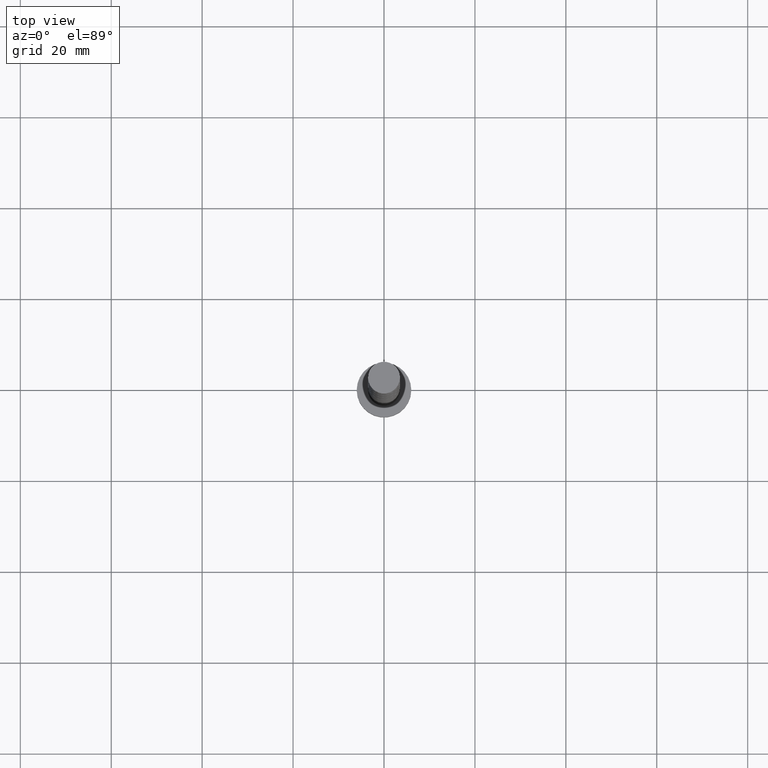
[diagram: clean part render]
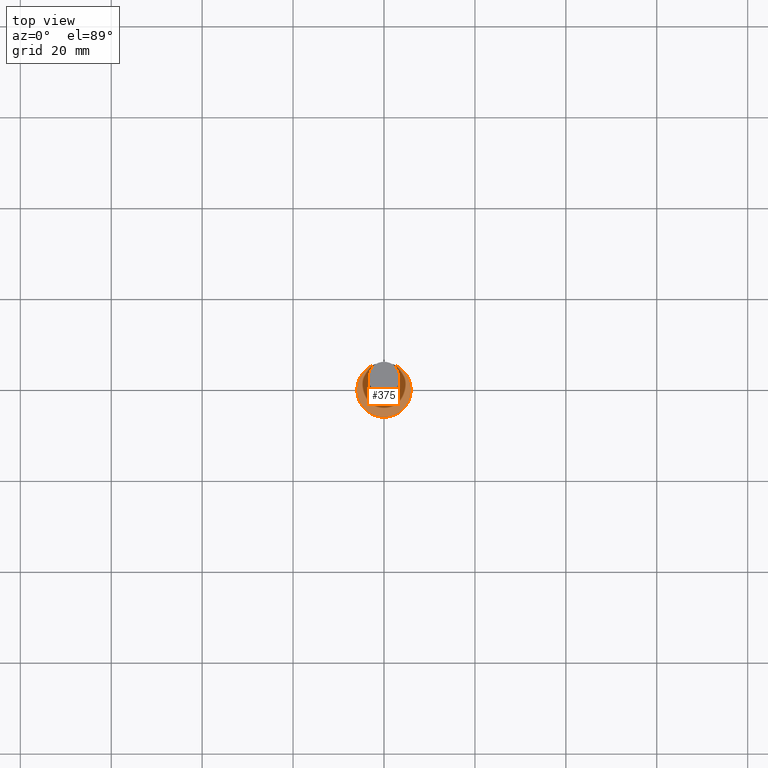
[diagram: same view with one face highlighted and labeled with its STEP entity id]
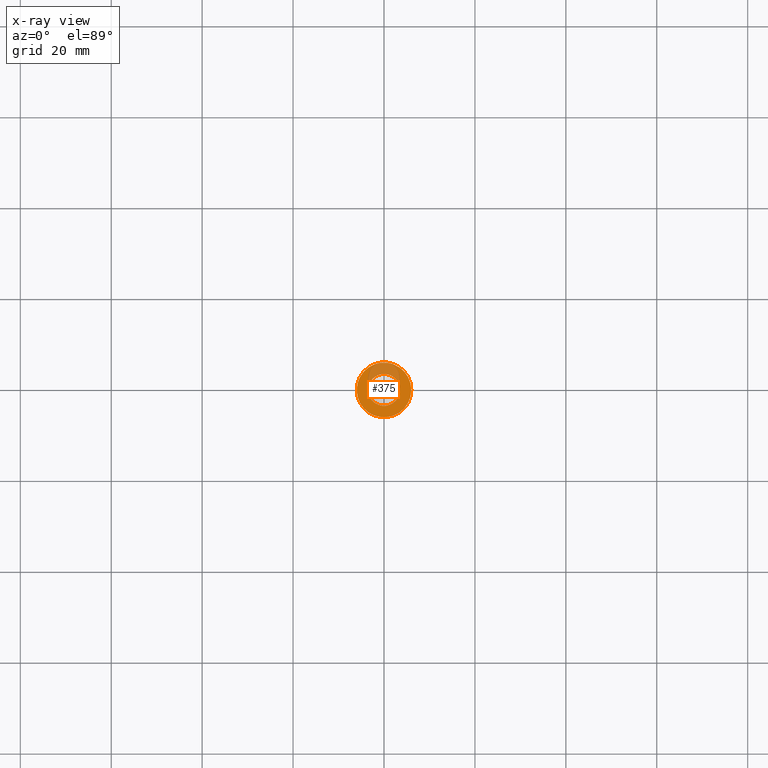
[diagram: x-ray of the same camera — body ghosted, the highlighted face saturated]
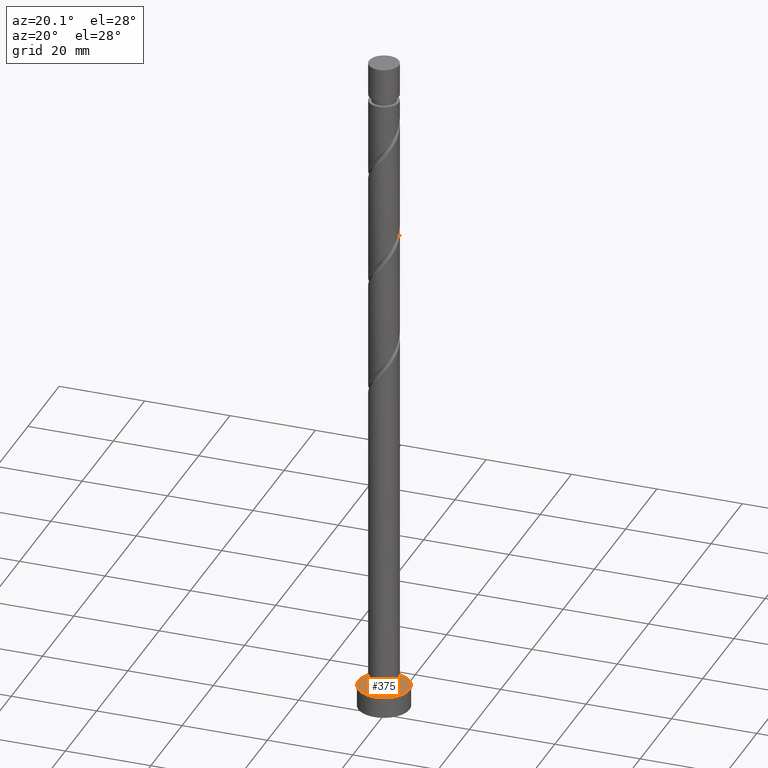
[diagram: same view with one face highlighted and labeled with its STEP entity id]
A machine part, top view. The second image highlights one B-rep face of the part: STEP entity #375.
The next image is the same camera in x-ray: the body ghosted, the highlighted face saturated — about 25% of this face is hidden behind the body in this view.
A second angle (auxiliary view) of the same face is appended — the face is thin or edge-on in the first view.
In plain terms, the highlighted planar face has unit normal (0, 0, 1).
Its self-contained STEP definition (entity closure, byte-faithful):
#83 = CARTESIAN_POINT ( 'NONE',  ( -6.000000000000000888, 0.000000000000000000, 5.000000000000000000 ) ) ;
#84 = EDGE_LOOP ( 'NONE', ( #799, #1238 ) ) ;
#167 = CARTESIAN_POINT ( 'NONE',  ( 6.000000000000000888, 7.347880794884120722E-16, 5.000000000000000000 ) ) ;
#171 = DIRECTION ( 'NONE',  ( 0.000000000000000000, 0.000000000000000000, 1.000000000000000000 ) ) ;
#183 = EDGE_CURVE ( 'NONE', #1474, #952, #552, .T. ) ;
#192 = CARTESIAN_POINT ( 'NONE',  ( 0.000000000000000000, 0.000000000000000000, 5.000000000000000000 ) ) ;
#209 = ORIENTED_EDGE ( 'NONE', *, *, #1629, .F. ) ;
#275 = DIRECTION ( 'NONE',  ( 1.000000000000000000, 0.000000000000000000, 0.000000000000000000 ) ) ;
#284 = ORIENTED_EDGE ( 'NONE', *, *, #183, .F. ) ;
#375 = ADVANCED_FACE ( 'NONE', ( #1239, #833 ), #820, .T. ) ;
#408 = VERTEX_POINT ( 'NONE', #83 ) ;
#449 = AXIS2_PLACEMENT_3D ( 'NONE', #886, #1139, #1409 ) ;
#552 = CIRCLE ( 'NONE', #1265, 3.500000000000000000 ) ;
#554 = AXIS2_PLACEMENT_3D ( 'NONE', #702, #1614, #965 ) ;
#605 = DIRECTION ( 'NONE',  ( 0.000000000000000000, 0.000000000000000000, 1.000000000000000000 ) ) ;
#653 = CARTESIAN_POINT ( 'NONE',  ( -3.500000000000000000, 0.000000000000000000, 5.000000000000000000 ) ) ;
#702 = CARTESIAN_POINT ( 'NONE',  ( 0.000000000000000000, 0.000000000000000000, 5.000000000000000000 ) ) ;
#753 = EDGE_CURVE ( 'NONE', #408, #1170, #1125, .T. ) ;
#799 = ORIENTED_EDGE ( 'NONE', *, *, #753, .T. ) ;
#820 = PLANE ( 'NONE',  #1289 ) ;
#833 = FACE_OUTER_BOUND ( 'NONE', #84, .T. ) ;
#886 = CARTESIAN_POINT ( 'NONE',  ( 0.000000000000000000, 0.000000000000000000, 5.000000000000000000 ) ) ;
#952 = VERTEX_POINT ( 'NONE', #1546 ) ;
#965 = DIRECTION ( 'NONE',  ( 1.000000000000000000, 0.000000000000000000, 0.000000000000000000 ) ) ;
#1045 = EDGE_LOOP ( 'NONE', ( #284, #209 ) ) ;
#1055 = DIRECTION ( 'NONE',  ( 0.000000000000000000, 0.000000000000000000, 1.000000000000000000 ) ) ;
#1062 = CIRCLE ( 'NONE', #554, 3.500000000000000000 ) ;
#1125 = CIRCLE ( 'NONE', #449, 6.000000000000000888 ) ;
#1139 = DIRECTION ( 'NONE',  ( 0.000000000000000000, 0.000000000000000000, 1.000000000000000000 ) ) ;
#1148 = EDGE_CURVE ( 'NONE', #1170, #408, #1173, .T. ) ;
#1170 = VERTEX_POINT ( 'NONE', #167 ) ;
#1173 = CIRCLE ( 'NONE', #1398, 6.000000000000000888 ) ;
#1233 = CARTESIAN_POINT ( 'NONE',  ( 0.000000000000000000, 0.000000000000000000, 5.000000000000000000 ) ) ;
#1238 = ORIENTED_EDGE ( 'NONE', *, *, #1148, .T. ) ;
#1239 = FACE_BOUND ( 'NONE', #1045, .T. ) ;
#1265 = AXIS2_PLACEMENT_3D ( 'NONE', #1335, #171, #275 ) ;
#1289 = AXIS2_PLACEMENT_3D ( 'NONE', #192, #605, #1469 ) ;
#1335 = CARTESIAN_POINT ( 'NONE',  ( 0.000000000000000000, 0.000000000000000000, 5.000000000000000000 ) ) ;
#1398 = AXIS2_PLACEMENT_3D ( 'NONE', #1233, #1055, #1576 ) ;
#1409 = DIRECTION ( 'NONE',  ( 1.000000000000000000, 0.000000000000000000, 0.000000000000000000 ) ) ;
#1469 = DIRECTION ( 'NONE',  ( 1.000000000000000000, 0.000000000000000000, -0.000000000000000000 ) ) ;
#1474 = VERTEX_POINT ( 'NONE', #653 ) ;
#1546 = CARTESIAN_POINT ( 'NONE',  ( 3.500000000000000000, 4.286263797015736595E-16, 5.000000000000000000 ) ) ;
#1576 = DIRECTION ( 'NONE',  ( 1.000000000000000000, 0.000000000000000000, 0.000000000000000000 ) ) ;
#1614 = DIRECTION ( 'NONE',  ( 0.000000000000000000, 0.000000000000000000, 1.000000000000000000 ) ) ;
#1629 = EDGE_CURVE ( 'NONE', #952, #1474, #1062, .T. ) ;